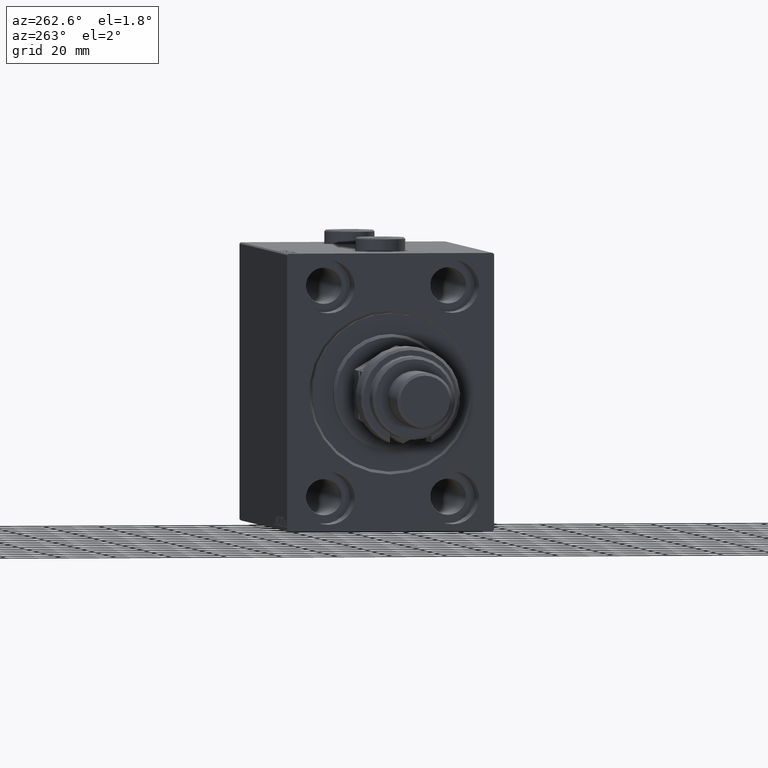
[diagram: clean part render]
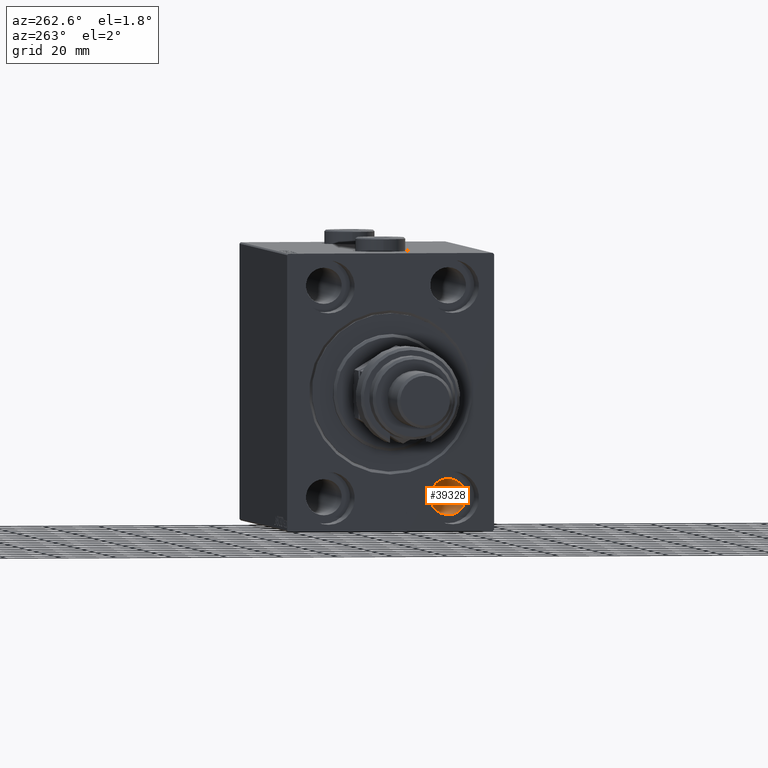
[diagram: same view with one face highlighted and labeled with its STEP entity id]
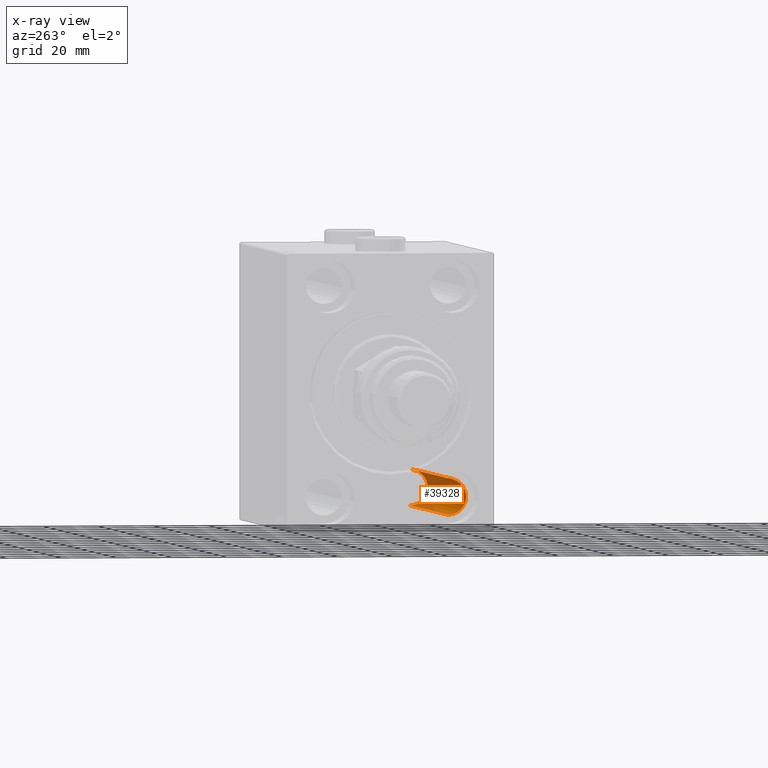
[diagram: x-ray of the same camera — body ghosted, the highlighted face saturated]
A machine part, auxiliary view. The second image highlights one B-rep face of the part: STEP entity #39328.
The next image is the same camera in x-ray: the body ghosted, the highlighted face saturated — about 28% of this face is hidden behind the body in this view.
In plain terms, the highlighted cylindrical surface (edge-blend (fillet) strip) has radius 6.5 mm, axis along (-1, -0, -0).
Its self-contained STEP definition (entity closure, byte-faithful):
#445 = LINE ( 'NONE', #26255, #34062 ) ;
#2144 = VECTOR ( 'NONE', #4807, 1000.000000000000000 ) ;
#2679 = DIRECTION ( 'NONE',  ( -1.000000000000000000, -0.000000000000000000, -0.000000000000000000 ) ) ;
#4720 = VERTEX_POINT ( 'NONE', #18893 ) ;
#4807 = DIRECTION ( 'NONE',  ( -1.000000000000000000, -0.000000000000000000, -0.000000000000000000 ) ) ;
#6036 = AXIS2_PLACEMENT_3D ( 'NONE', #7687, #33738, #11355 ) ;
#7687 = CARTESIAN_POINT ( 'NONE',  ( 133.0000000000000000, -22.50000000000000711, -37.99999999999999289 ) ) ;
#8102 = EDGE_LOOP ( 'NONE', ( #27566, #42022, #41018, #46127 ) ) ;
#8457 = LINE ( 'NONE', #38158, #2144 ) ;
#11355 = DIRECTION ( 'NONE',  ( 0.000000000000000000, 0.000000000000000000, 1.000000000000000000 ) ) ;
#13191 = DIRECTION ( 'NONE',  ( 0.000000000000000000, 0.000000000000000000, -1.000000000000000000 ) ) ;
#16180 = AXIS2_PLACEMENT_3D ( 'NONE', #39011, #29008, #32662 ) ;
#16735 = AXIS2_PLACEMENT_3D ( 'NONE', #46533, #2679, #13191 ) ;
#17938 = FACE_OUTER_BOUND ( 'NONE', #8102, .T. ) ;
#18893 = CARTESIAN_POINT ( 'NONE',  ( 12.99999999999999822, -22.50000000000000711, -31.49999999999999289 ) ) ;
#21375 = CARTESIAN_POINT ( 'NONE',  ( 120.0000000000000142, -22.50000000000000711, -44.49999999999999289 ) ) ;
#22391 = CIRCLE ( 'NONE', #16180, 6.499999999999999112 ) ;
#25462 = CARTESIAN_POINT ( 'NONE',  ( 120.0000000000000142, -22.50000000000000711, -31.49999999999999289 ) ) ;
#26255 = CARTESIAN_POINT ( 'NONE',  ( 133.0000000000000000, -22.50000000000000711, -31.49999999999999289 ) ) ;
#27566 = ORIENTED_EDGE ( 'NONE', *, *, #28047, .F. ) ;
#28047 = EDGE_CURVE ( 'NONE', #29855, #44513, #37709, .T. ) ;
#29008 = DIRECTION ( 'NONE',  ( -1.000000000000000000, 0.000000000000000000, 0.000000000000000000 ) ) ;
#29327 = CARTESIAN_POINT ( 'NONE',  ( 12.99999999999999822, -22.50000000000000711, -44.49999999999999289 ) ) ;
#29855 = VERTEX_POINT ( 'NONE', #21375 ) ;
#32662 = DIRECTION ( 'NONE',  ( 0.000000000000000000, 0.000000000000000000, 1.000000000000000000 ) ) ;
#33738 = DIRECTION ( 'NONE',  ( -1.000000000000000000, -0.000000000000000000, -0.000000000000000000 ) ) ;
#34062 = VECTOR ( 'NONE', #41100, 1000.000000000000000 ) ;
#36026 = EDGE_CURVE ( 'NONE', #44679, #4720, #22391, .T. ) ;
#37709 = CIRCLE ( 'NONE', #16735, 6.499999999999999112 ) ;
#38158 = CARTESIAN_POINT ( 'NONE',  ( 133.0000000000000000, -22.50000000000000711, -44.49999999999999289 ) ) ;
#39011 = CARTESIAN_POINT ( 'NONE',  ( 12.99999999999999822, -22.50000000000000711, -37.99999999999999289 ) ) ;
#39134 = EDGE_CURVE ( 'NONE', #29855, #44679, #8457, .T. ) ;
#39328 = ADVANCED_FACE ( 'NONE', ( #17938 ), #47887, .F. ) ;
#40148 = EDGE_CURVE ( 'NONE', #44513, #4720, #445, .T. ) ;
#41018 = ORIENTED_EDGE ( 'NONE', *, *, #36026, .T. ) ;
#41100 = DIRECTION ( 'NONE',  ( -1.000000000000000000, -0.000000000000000000, -0.000000000000000000 ) ) ;
#42022 = ORIENTED_EDGE ( 'NONE', *, *, #39134, .T. ) ;
#44513 = VERTEX_POINT ( 'NONE', #25462 ) ;
#44679 = VERTEX_POINT ( 'NONE', #29327 ) ;
#46127 = ORIENTED_EDGE ( 'NONE', *, *, #40148, .F. ) ;
#46533 = CARTESIAN_POINT ( 'NONE',  ( 120.0000000000000142, -22.50000000000000711, -37.99999999999999289 ) ) ;
#47887 = CYLINDRICAL_SURFACE ( 'NONE', #6036, 6.499999999999999112 ) ;